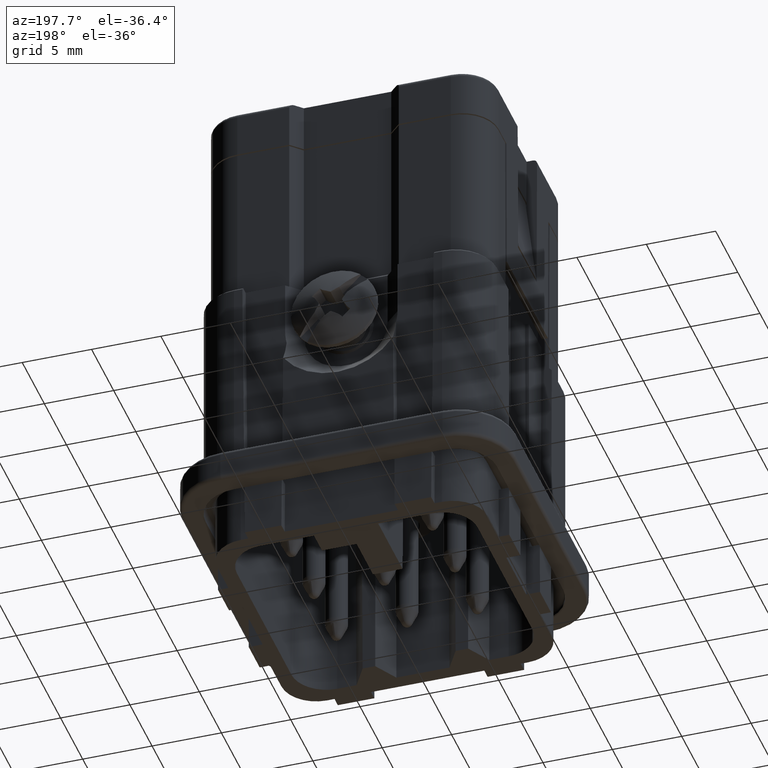
[diagram: clean part render]
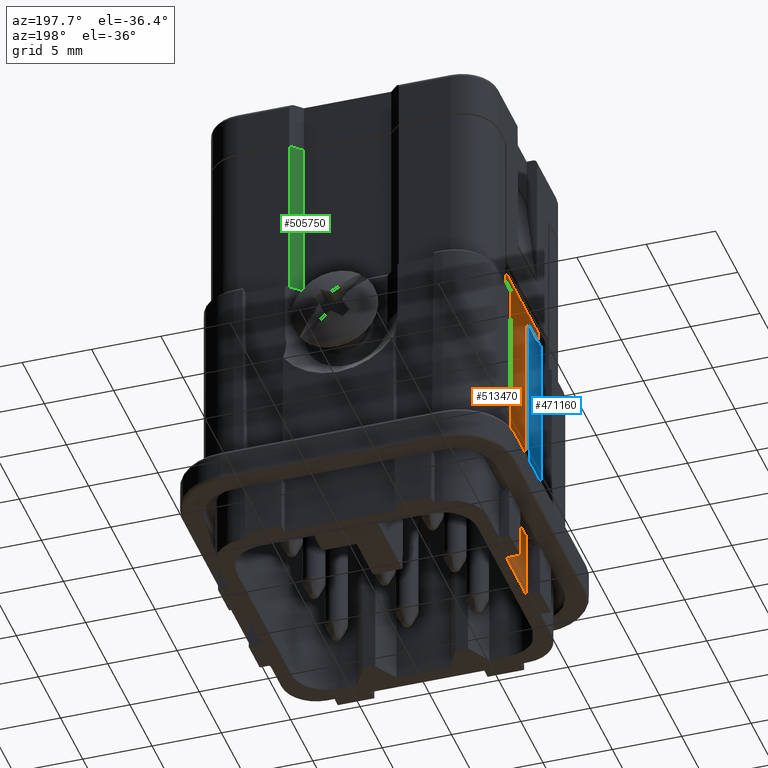
[diagram: same view with three faces highlighted in distinct colors, each labeled with its STEP entity id]
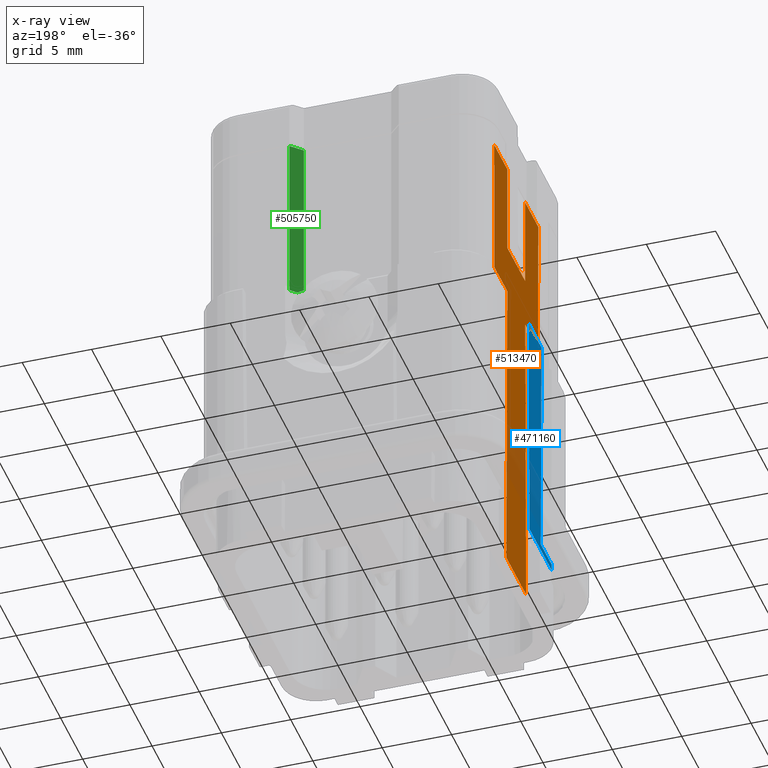
[diagram: x-ray of the same camera — body ghosted, the three highlighted faces saturated]
A machine part, auxiliary view with three faces highlighted in distinct colors.
The next image is the same camera in x-ray (body ghosted, the three faces saturated) — at least one of them is partly hidden behind the body in this view.
Their STEP definitions:

[orange] entity #513470 — the highlighted planar face has unit normal (-1, 0, 0).
#4470=CARTESIAN_POINT('',(38.784245,51.0210136832329,19.5));
#4480=VERTEX_POINT('',#4470);
#4510=CARTESIAN_POINT('',(38.784245,40.2028942015763,19.5));
#4520=DIRECTION('',(-0.,-1.,0.));
#4530=VECTOR('',#4520,1.);
#4540=LINE('',#4510,#4530);
#4550=CARTESIAN_POINT('',(38.784245,46.5567443167646,19.5));
#4560=VERTEX_POINT('',#4550);
#4570=EDGE_CURVE('',#4480,#4560,#4540,.T.);
#483670=CARTESIAN_POINT('',(38.784245,53.6972468881971,42.3999999999999)
);
#483680=VERTEX_POINT('',#483670);
#483710=CARTESIAN_POINT('',(38.784245,40.2028942015763,42.3999999999999)
);
#483720=DIRECTION('',(-0.,-1.,0.));
#483730=VECTOR('',#483720,1.);
#483740=LINE('',#483710,#483730);
#483750=CARTESIAN_POINT('',(38.784245,50.8211684108246,42.3999999999999)
);
#483760=VERTEX_POINT('',#483750);
#483770=EDGE_CURVE('',#483680,#483760,#483740,.T.);
#484530=CARTESIAN_POINT('',(38.784245,46.7888789999988,52.7999999999999)
);
#484540=VERTEX_POINT('',#484530);
#484570=CARTESIAN_POINT('',(38.784245,46.7888789999988,19.5));
#484580=DIRECTION('',(0.,0.,1.));
#484590=VECTOR('',#484580,1.);
#484600=LINE('',#484570,#484590);
#484610=CARTESIAN_POINT('',(38.784245,46.7888789999988,46.1));
#484620=VERTEX_POINT('',#484610);
#484630=EDGE_CURVE('',#484620,#484540,#484600,.T.);
#485910=CARTESIAN_POINT('',(38.784245,46.756589589173,42.3999999999999))
;
#485920=VERTEX_POINT('',#485910);
#485950=CARTESIAN_POINT('',(38.784245,40.2028942015763,42.3999999999999)
);
#485960=DIRECTION('',(-0.,-1.,0.));
#485970=VECTOR('',#485960,1.);
#485980=LINE('',#485950,#485970);
#485990=CARTESIAN_POINT('',(38.784245,43.880511111803,42.3999999999999))
;
#486000=VERTEX_POINT('',#485990);
#486010=EDGE_CURVE('',#485920,#486000,#485980,.T.);
#490430=CARTESIAN_POINT('',(38.784245,40.2028942015763,46.1));
#490440=DIRECTION('',(-0.,-1.,0.));
#490450=VECTOR('',#490440,1.);
#490460=LINE('',#490430,#490450);
#490470=CARTESIAN_POINT('',(38.784245,50.7888790000013,46.1));
#490480=VERTEX_POINT('',#490470);
#490490=EDGE_CURVE('',#490480,#484620,#490460,.T.);
#492160=CARTESIAN_POINT('',(38.784245,51.0210136832329,19.5));
#492170=DIRECTION('',(0.,0.00872653549837388,-0.999961923064171));
#492180=VECTOR('',#492170,1.);
#492190=LINE('',#492160,#492180);
#492200=EDGE_CURVE('',#483760,#4480,#492190,.T.);
#492960=CARTESIAN_POINT('',(38.784245,46.5567443167646,19.5));
#492970=DIRECTION('',(0.,0.00872653549837382,0.999961923064171));
#492980=VECTOR('',#492970,1.);
#492990=LINE('',#492960,#492980);
#493000=EDGE_CURVE('',#4560,#485920,#492990,.T.);
#504110=CARTESIAN_POINT('',(38.784245,50.7888790000013,52.7999999999999)
);
#504120=VERTEX_POINT('',#504110);
#504170=CARTESIAN_POINT('',(38.784245,50.7888790000013,19.5));
#504180=DIRECTION('',(-0.,0.,-1.));
#504190=VECTOR('',#504180,1.);
#504200=LINE('',#504170,#504190);
#504210=EDGE_CURVE('',#504120,#490480,#504200,.T.);
#508140=CARTESIAN_POINT('',(38.784245,43.7897516867791,52.7999999999999)
);
#508150=VERTEX_POINT('',#508140);
#508180=CARTESIAN_POINT('',(38.784245,40.2028942015763,52.7999999999999)
);
#508190=DIRECTION('',(-0.,-1.,0.));
#508200=VECTOR('',#508190,1.);
#508210=LINE('',#508180,#508200);
#508220=EDGE_CURVE('',#484540,#508150,#508210,.T.);
#508270=CARTESIAN_POINT('',(38.784245,53.7880063132209,52.7999999999999)
);
#508280=VERTEX_POINT('',#508270);
#508290=EDGE_CURVE('',#508280,#504120,#508210,.T.);
#510020=CARTESIAN_POINT('',(38.784245,53.4974016157887,19.5));
#510030=DIRECTION('',(-0.,0.00872653549837393,0.999961923064171));
#510040=VECTOR('',#510030,1.);
#510050=LINE('',#510020,#510040);
#510060=EDGE_CURVE('',#483680,#508280,#510050,.T.);
#513230=CARTESIAN_POINT('',(38.784245,53.0826187976217,41.4593703674316)
);
#513240=DIRECTION('',(-1.,0.,0.));
#513250=DIRECTION('',(0.,1.,0.));
#513260=AXIS2_PLACEMENT_3D('',#513230,#513240,#513250);
#513270=PLANE('',#513260);
#513280=ORIENTED_EDGE('',*,*,#504210,.F.);
#513290=ORIENTED_EDGE('',*,*,#490490,.F.);
#513300=ORIENTED_EDGE('',*,*,#484630,.F.);
#513310=ORIENTED_EDGE('',*,*,#508220,.F.);
#513320=CARTESIAN_POINT('',(38.784245,44.0803563842114,19.5));
#513330=DIRECTION('',(-0.,0.00872653549837393,-0.999961923064171));
#513340=VECTOR('',#513330,1.);
#513350=LINE('',#513320,#513340);
#513360=EDGE_CURVE('',#508150,#486000,#513350,.T.);
#513370=ORIENTED_EDGE('',*,*,#513360,.F.);
#513380=ORIENTED_EDGE('',*,*,#486010,.T.);
#513390=ORIENTED_EDGE('',*,*,#493000,.T.);
#513400=ORIENTED_EDGE('',*,*,#4570,.T.);
#513410=ORIENTED_EDGE('',*,*,#492200,.T.);
#513420=ORIENTED_EDGE('',*,*,#483770,.T.);
#513430=ORIENTED_EDGE('',*,*,#510060,.F.);
#513440=ORIENTED_EDGE('',*,*,#508290,.F.);
#513450=EDGE_LOOP('',(#513440,#513430,#513420,#513410,#513400,#513390,
#513380,#513370,#513310,#513300,#513290,#513280));
#513460=FACE_OUTER_BOUND('',#513450,.T.);
#513470=ADVANCED_FACE('',(#513460),#513270,.T.);

[blue] entity #471160 — the highlighted planar face has unit normal (1, 0, 0).
#436300=CARTESIAN_POINT('',(38.534245,41.538879,41.));
#436310=DIRECTION('',(0.,0.,-1.));
#436320=VECTOR('',#436310,1.);
#436330=LINE('',#436300,#436320);
#440640=CARTESIAN_POINT('',(38.534245,41.538879,25.5));
#440650=VERTEX_POINT('',#440640);
#440680=CARTESIAN_POINT('',(38.534245,40.2028942015763,25.5));
#440690=DIRECTION('',(0.,1.,0.));
#440700=VECTOR('',#440690,1.);
#440710=LINE('',#440680,#440700);
#440720=CARTESIAN_POINT('',(38.534245,44.0279951774668,25.5));
#440730=VERTEX_POINT('',#440720);
#440740=EDGE_CURVE('',#440650,#440730,#440710,.T.);
#470740=CARTESIAN_POINT('',(38.534245,54.538879,41.));
#470750=DIRECTION('',(1.,0.,0.));
#470760=DIRECTION('',(0.,-1.,0.));
#470770=AXIS2_PLACEMENT_3D('',#470740,#470750,#470760);
#470780=PLANE('',#470770);
#470790=CARTESIAN_POINT('',(38.534245,40.2028942015763,42.3999999999999)
);
#470800=DIRECTION('',(0.,-1.,0.));
#470810=VECTOR('',#470800,1.);
#470820=LINE('',#470790,#470810);
#470830=CARTESIAN_POINT('',(38.534245,46.756589589173,42.3999999999999))
;
#470840=VERTEX_POINT('',#470830);
#470850=CARTESIAN_POINT('',(38.534245,43.880511111803,42.3999999999999))
;
#470860=VERTEX_POINT('',#470850);
#470870=EDGE_CURVE('',#470840,#470860,#470820,.T.);
#470880=ORIENTED_EDGE('',*,*,#470870,.F.);
#470890=CARTESIAN_POINT('',(38.534245,44.0803563842114,19.5));
#470900=DIRECTION('',(0.,-0.00872653549837393,0.999961923064171));
#470910=VECTOR('',#470900,1.);
#470920=LINE('',#470890,#470910);
#470930=EDGE_CURVE('',#440730,#470860,#470920,.T.);
#470940=ORIENTED_EDGE('',*,*,#470930,.T.);
#470950=ORIENTED_EDGE('',*,*,#440740,.T.);
#470960=CARTESIAN_POINT('',(38.534245,41.538879,25.0070717072772));
#470970=VERTEX_POINT('',#470960);
#470980=EDGE_CURVE('',#440650,#470970,#436330,.T.);
#470990=ORIENTED_EDGE('',*,*,#470980,.F.);
#471000=CARTESIAN_POINT('',(38.534245,58.1487706199127,25.0070717072772)
);
#471010=DIRECTION('',(0.,-1.,0.));
#471020=VECTOR('',#471010,1.);
#471030=LINE('',#471000,#471020);
#471040=CARTESIAN_POINT('',(38.534245,46.6048038034682,25.0070717072772)
);
#471050=VERTEX_POINT('',#471040);
#471060=EDGE_CURVE('',#471050,#470970,#471030,.T.);
#471070=ORIENTED_EDGE('',*,*,#471060,.T.);
#471080=CARTESIAN_POINT('',(38.534245,46.5567443167646,19.5));
#471090=DIRECTION('',(0.,0.00872653549837382,0.999961923064171));
#471100=VECTOR('',#471090,1.);
#471110=LINE('',#471080,#471100);
#471120=EDGE_CURVE('',#471050,#470840,#471110,.T.);
#471130=ORIENTED_EDGE('',*,*,#471120,.F.);
#471140=EDGE_LOOP('',(#471130,#471070,#470990,#470950,#470940,#470880));
#471150=FACE_OUTER_BOUND('',#471140,.T.);
#471160=ADVANCED_FACE('',(#471150),#470780,.F.);

[green] entity #505750 — the highlighted planar face has unit normal (-0.7071, 0.7071, 0).
#284430=CARTESIAN_POINT('',(52.234245,57.938879,52.7999999999999));
#284440=VERTEX_POINT('',#284430);
#284470=CARTESIAN_POINT('',(52.234245,57.938879,19.5));
#284480=DIRECTION('',(0.,0.,-1.));
#284490=VECTOR('',#284480,1.);
#284500=LINE('',#284470,#284490);
#284510=CARTESIAN_POINT('',(52.234245,57.938879,40.4999999999999));
#284520=VERTEX_POINT('',#284510);
#284530=EDGE_CURVE('',#284440,#284520,#284500,.T.);
#470130=CARTESIAN_POINT('',(34.4982602015763,40.2028942015763,
40.4999999999999));
#470140=DIRECTION('',(0.707106781186548,0.707106781186548,0.));
#470150=VECTOR('',#470140,1.);
#470160=LINE('',#470130,#470150);
#470170=CARTESIAN_POINT('',(51.784245,57.488879,40.4999999999999));
#470180=VERTEX_POINT('',#470170);
#470190=EDGE_CURVE('',#470180,#284520,#470160,.T.);
#486240=CARTESIAN_POINT('',(72.7842449999999,78.4888789999999,19.5));
#486250=DIRECTION('',(-0.577350269189626,-0.577350269189626,
0.577350269189626));
#486260=VECTOR('',#486250,1.);
#486270=LINE('',#486240,#486260);
#486280=CARTESIAN_POINT('',(51.434245,57.138879,40.8499999999999));
#486290=VERTEX_POINT('',#486280);
#486300=EDGE_CURVE('',#470180,#486290,#486270,.T.);
#505510=CARTESIAN_POINT('',(51.584245,57.288879,36.5));
#505520=DIRECTION('',(-0.707106781186548,0.707106781186548,0.));
#505530=DIRECTION('',(-0.707106781186548,-0.707106781186548,0.));
#505540=AXIS2_PLACEMENT_3D('',#505510,#505520,#505530);
#505550=PLANE('',#505540);
#505560=ORIENTED_EDGE('',*,*,#486300,.T.);
#505570=ORIENTED_EDGE('',*,*,#470190,.F.);
#505580=ORIENTED_EDGE('',*,*,#284530,.T.);
#505590=CARTESIAN_POINT('',(34.4982602015763,40.2028942015763,
52.7999999999999));
#505600=DIRECTION('',(-0.707106781186548,-0.707106781186548,0.));
#505610=VECTOR('',#505600,1.);
#505620=LINE('',#505590,#505610);
#505630=CARTESIAN_POINT('',(51.434245,57.138879,52.7999999999999));
#505640=VERTEX_POINT('',#505630);
#505650=EDGE_CURVE('',#284440,#505640,#505620,.T.);
#505660=ORIENTED_EDGE('',*,*,#505650,.F.);
#505670=CARTESIAN_POINT('',(51.434245,57.138879,19.5));
#505680=DIRECTION('',(0.,0.,-1.));
#505690=VECTOR('',#505680,1.);
#505700=LINE('',#505670,#505690);
#505710=EDGE_CURVE('',#505640,#486290,#505700,.T.);
#505720=ORIENTED_EDGE('',*,*,#505710,.F.);
#505730=EDGE_LOOP('',(#505720,#505660,#505580,#505570,#505560));
#505740=FACE_OUTER_BOUND('',#505730,.T.);
#505750=ADVANCED_FACE('',(#505740),#505550,.T.);